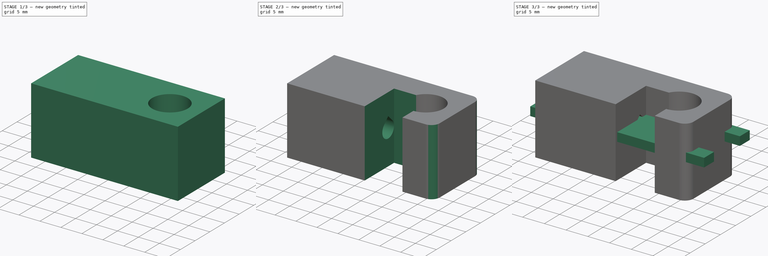
[diagram: build sequence overview — one tinted view per stage of 3, left to right]
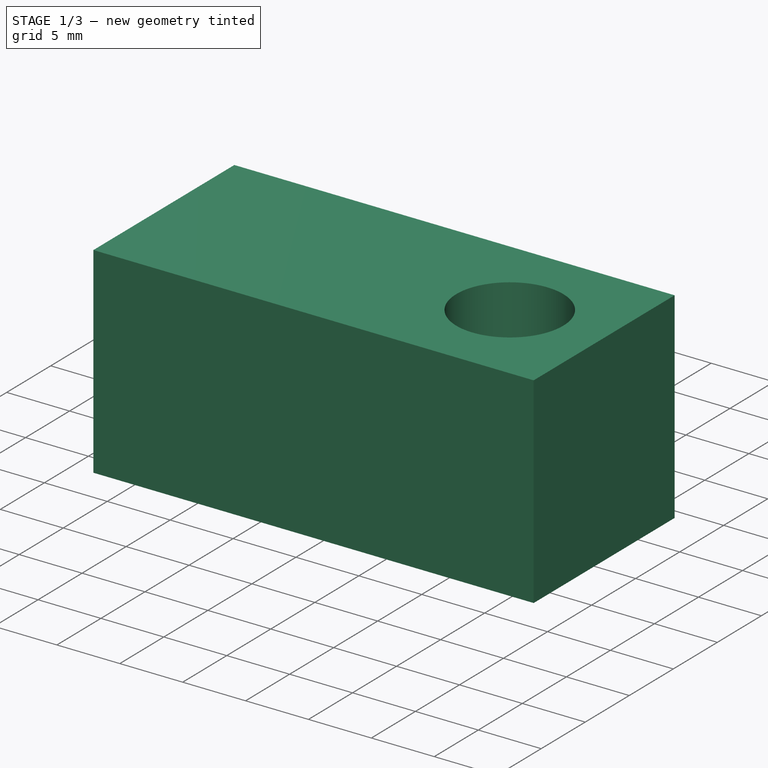
[diagram: stage 1 of 3 — iso view after this stage's code; geometry added in this stage tinted green]
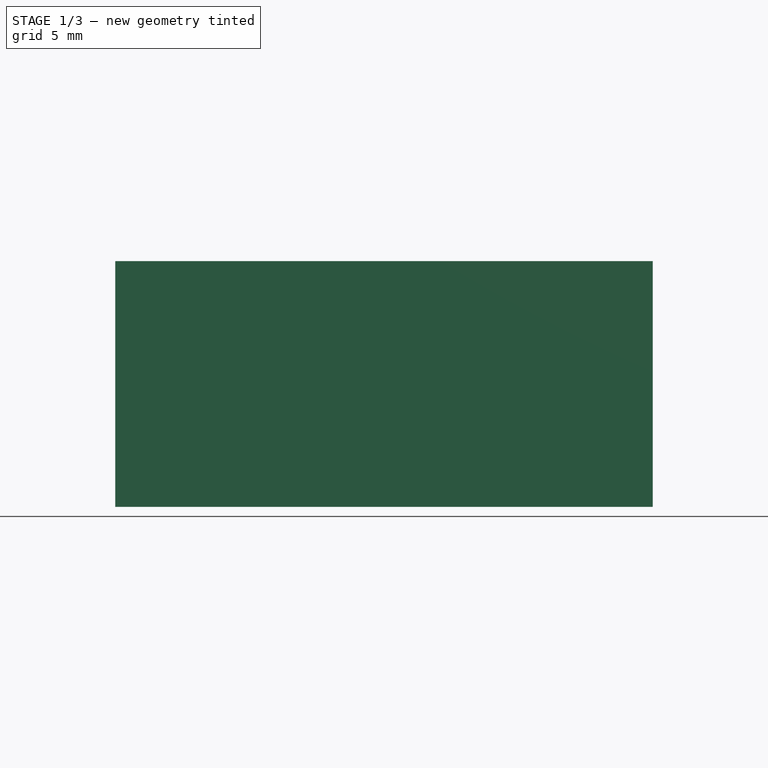
[diagram: stage 1 of 3 — front view after this stage's code; geometry added in this stage tinted green]
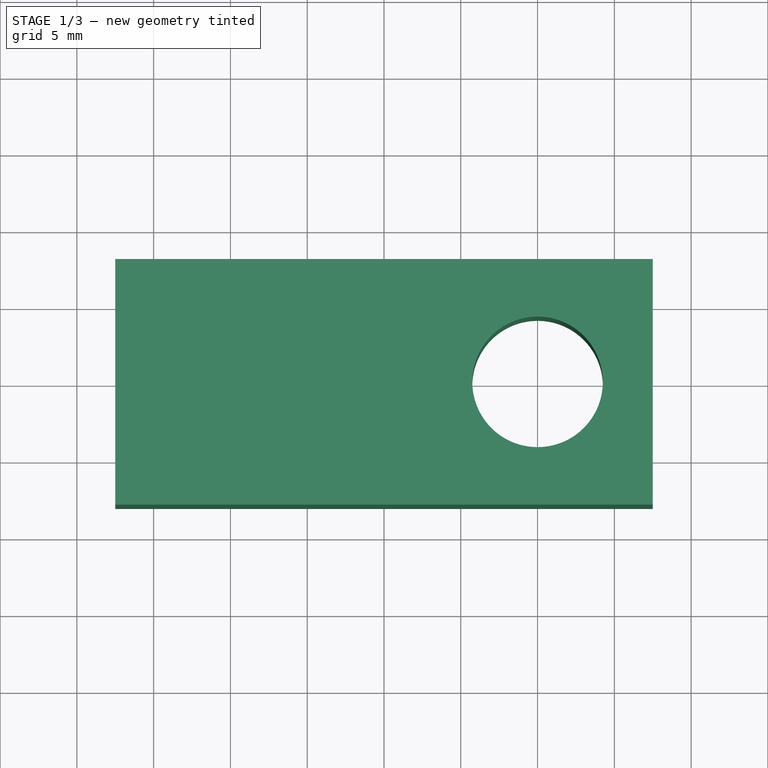
[diagram: stage 1 of 3 — top view after this stage's code; geometry added in this stage tinted green]
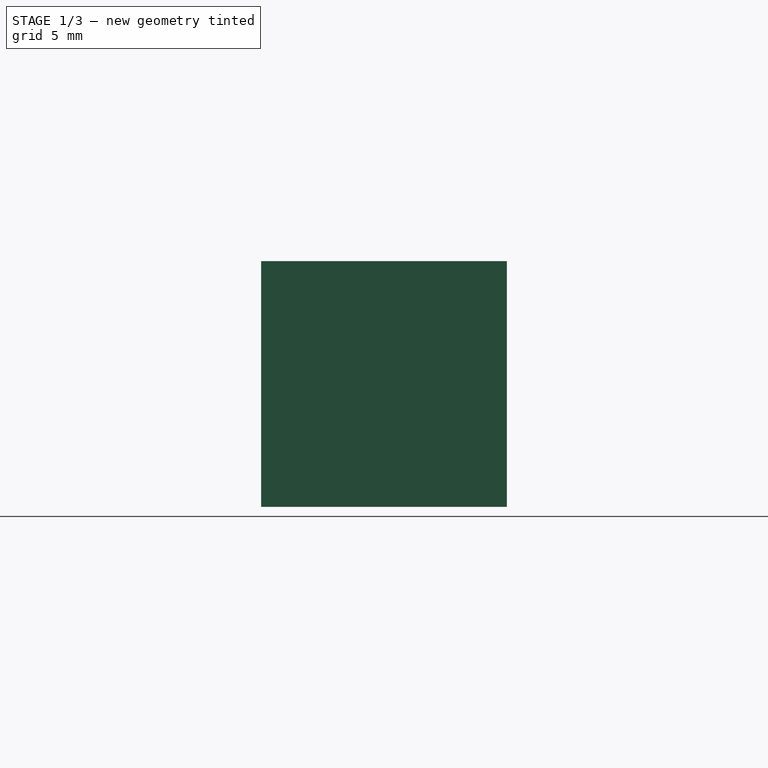
[diagram: stage 1 of 3 — right view after this stage's code; geometry added in this stage tinted green]
FCSTD DOCUMENT  (FreeCAD 0.21R33771 (Git))
Label: Nähmaschine
License: All rights reserved
LicenseURL: http://en.wikipedia.org/wiki/All_rights_reserved
objects: Sketcher::SketchObject×6, PartDesign::Pocket×4, PartDesign::Pad×2, PartDesign::Body×2, PartDesign::Fillet×1
note: 22 computed .brp shape members not serialized (recipe doc carries the construction recipe); baked Part::Feature solids carry a one-line shape summary decoded from their .brp

FEATURE [PartDesign::Body] Body  label="Plättchen"
  Group = -> [Sketch,Pad,Sketch001,Pocket]
  Origin = -> Origin
  Tip = -> Pocket
FEATURE [Sketcher::SketchObject] Sketch002
  FullyConstrained = true
  MapMode = 5
  Support = -> [XY_Plane001]
  sketch-geometry (4):
    g0: LineSegment StartX=-27.5 StartY=8 StartZ=0 EndX=7.5 EndY=8 EndZ=0
    g1: LineSegment StartX=7.5 StartY=8 StartZ=0 EndX=7.5 EndY=-8 EndZ=0
    g2: LineSegment StartX=7.5 StartY=-8 StartZ=0 EndX=-27.5 EndY=-8 EndZ=0
    g3: LineSegment StartX=-27.5 StartY=-8 StartZ=0 EndX=-27.5 EndY=8 EndZ=0
  constraints (11):
    c: Coincident(g0,g1)
    c: Coincident(g1,g2)
    c: Coincident(g2,g3)
    c: Coincident(g3,g0)
    c: Horizontal(g0)
    c: Horizontal(g2)
    c: Vertical(g3)
    c: Symmetric(g0,g1,g-1)
    c: Distance(g1) = 16
    c: Distance(g2) = 35
    c: Distance(g-1,g1) = 7.5
FEATURE [PartDesign::Pad] Pad001
  Direction = (0,0,1)
  Length = 16
  Length2 = 10
  Midplane = true
  Profile = -> Sketch002
  ReferenceAxis = -> Sketch002 [N_Axis]
  Type = 0
FEATURE [Sketcher::SketchObject] Sketch003
  FullyConstrained = true
  MapMode = 5
  Support = -> [XY_Plane001]
  sketch-geometry (1):
    g0: Circle CenterX=0 CenterY=0 CenterZ=0 NormalX=0 NormalY=0 NormalZ=1 AngleXU=0 Radius=4.25
  constraints (2):
    c: Coincident(g0,g-1)
    c: Diameter(g0) = 8.5
FEATURE [PartDesign::Pocket] Pocket001
  BaseFeature = -> Pad001
  Direction = (0,0,-1)
  Length = 5
  Length2 = 5
  Midplane = true
  Profile = -> Sketch003
  ReferenceAxis = -> Sketch003 [N_Axis]
  Type = 1
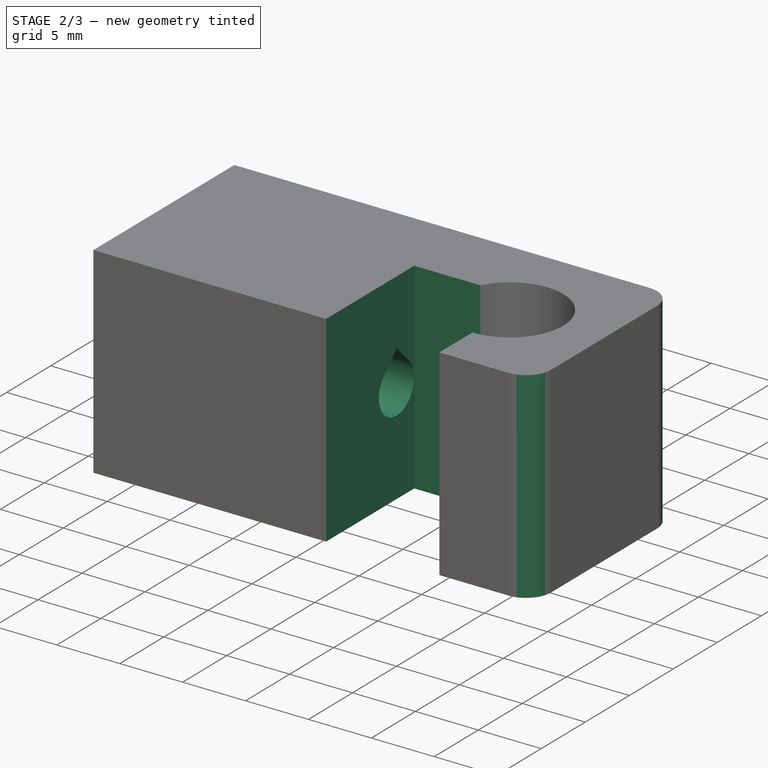
[diagram: stage 2 of 3 — iso view after this stage's code; geometry added in this stage tinted green]
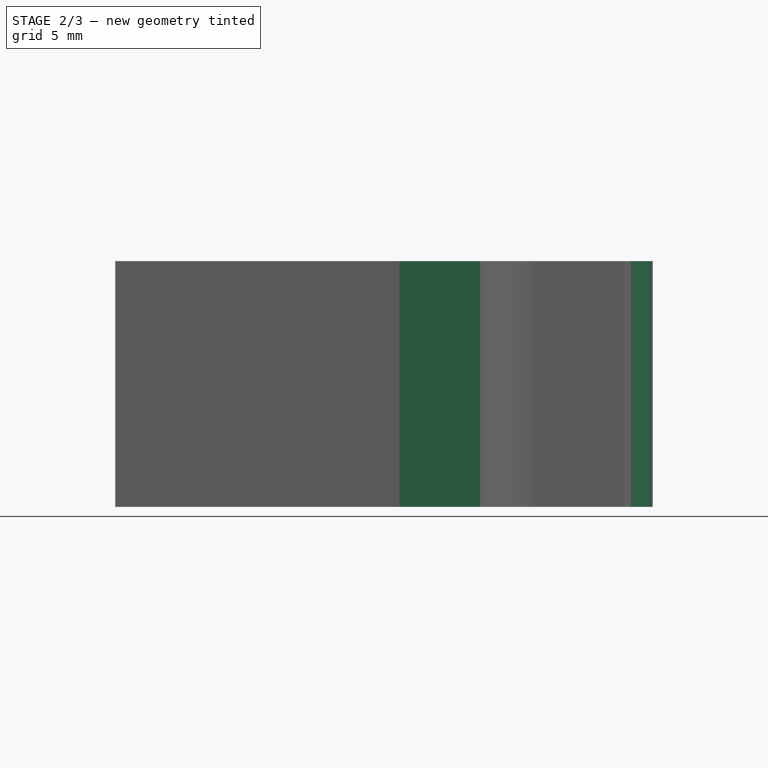
[diagram: stage 2 of 3 — front view after this stage's code; geometry added in this stage tinted green]
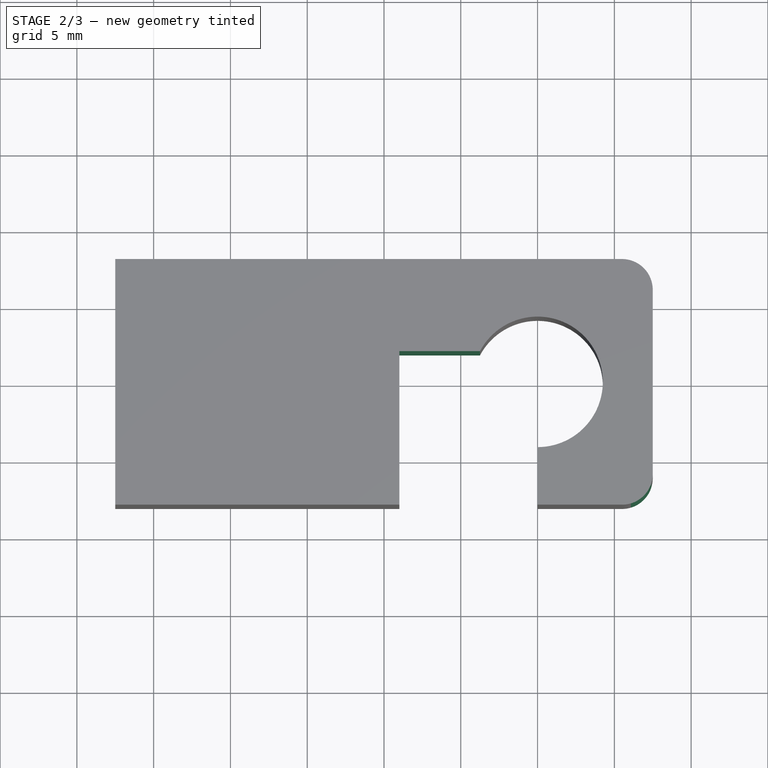
[diagram: stage 2 of 3 — top view after this stage's code; geometry added in this stage tinted green]
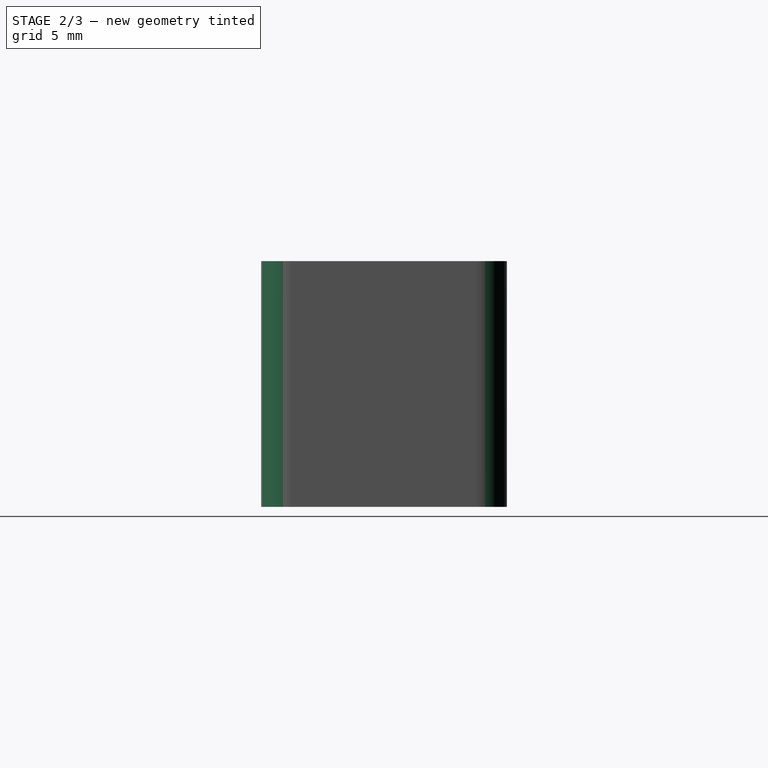
[diagram: stage 2 of 3 — right view after this stage's code; geometry added in this stage tinted green]
FEATURE [Sketcher::SketchObject] Sketch004
  ExternalGeometry = -> [Pocket001]
  FullyConstrained = true
  MapMode = 5
  Support = -> [XY_Plane001]
  sketch-geometry (4):
    g0: LineSegment StartX=-9 StartY=2 StartZ=0 EndX=0 EndY=2 EndZ=0
    g1: LineSegment StartX=0 StartY=2 StartZ=0 EndX=0 EndY=-8 EndZ=0
    g2: LineSegment StartX=0 StartY=-8 StartZ=0 EndX=-9 EndY=-8 EndZ=0
    g3: LineSegment StartX=-9 StartY=-8 StartZ=0 EndX=-9 EndY=2 EndZ=0
  constraints (12):
    c: Coincident(g0,g1)
    c: Coincident(g1,g2)
    c: Coincident(g2,g3)
    c: Coincident(g3,g0)
    c: Horizontal(g0)
    c: Horizontal(g2)
    c: Vertical(g1)
    c: Vertical(g3)
    c: PointOnObject(g-1,g1)
    c: PointOnObject(g-3,g2)
    c: DistanceY(g0,g-3) = 6
    c: DistanceX(g2,g2) = 9
FEATURE [PartDesign::Pocket] Pocket002
  BaseFeature = -> Pocket001
  Direction = (0,0,-1)
  Length = 5
  Length2 = 5
  Midplane = true
  Profile = -> Sketch004
  ReferenceAxis = -> Sketch004 [N_Axis]
  Type = 1
FEATURE [PartDesign::Fillet] Fillet
  Base = -> Pocket002 [Edge8,Edge2]
  BaseFeature = -> Pocket002
  Radius = 2
  SupportTransform = false
  UseAllEdges = false
FEATURE [Sketcher::SketchObject] Sketch005
  FullyConstrained = true
  MapMode = 5
  Placement = pos=(0,0,0) rot=(0.57735,0.57735,0.57735;2.0944rad)
  Support = -> [YZ_Plane001]
  sketch-geometry (3):
    g0: LineSegment StartX=1e-16 StartY=2.82843 StartZ=0 EndX=-1.41421 EndY=1.41421 EndZ=0
    g1: ArcOfCircle CenterX=0 CenterY=0 CenterZ=0 NormalX=0 NormalY=0 NormalZ=1 AngleXU=0 Radius=2 StartAngle=2.35619 EndAngle=7.06858
    g2: LineSegment StartX=1.41421 StartY=1.41421 StartZ=0 EndX=0 EndY=2.82843 EndZ=0
  constraints (7):
    c: Tangent(g0,g1) = -1.5708
    c: Tangent(g1,g2) = -1.5708
    c: Coincident(g0,g2)
    c: Horizontal(g1,g1)
    c: Perpendicular(g2,g0)
    c: Diameter(g1) = 4
    c: Coincident(g-1,g1)
FEATURE [PartDesign::Pocket] Pocket003
  BaseFeature = -> Fillet
  Direction = (-1,2e-16,-3e-16)
  Length = 5
  Length2 = 5
  Profile = -> Sketch005
  ReferenceAxis = -> Sketch005 [N_Axis]
  Type = 1
FEATURE [PartDesign::Body] Body001  label="Zwinge"
  Group = -> [Sketch002,Pad001,Sketch003,Pocket001,Sketch004,Pocket002,Fillet,Sketch005,Pocket003]
  Origin = -> Origin001
  Tip = -> Pocket003
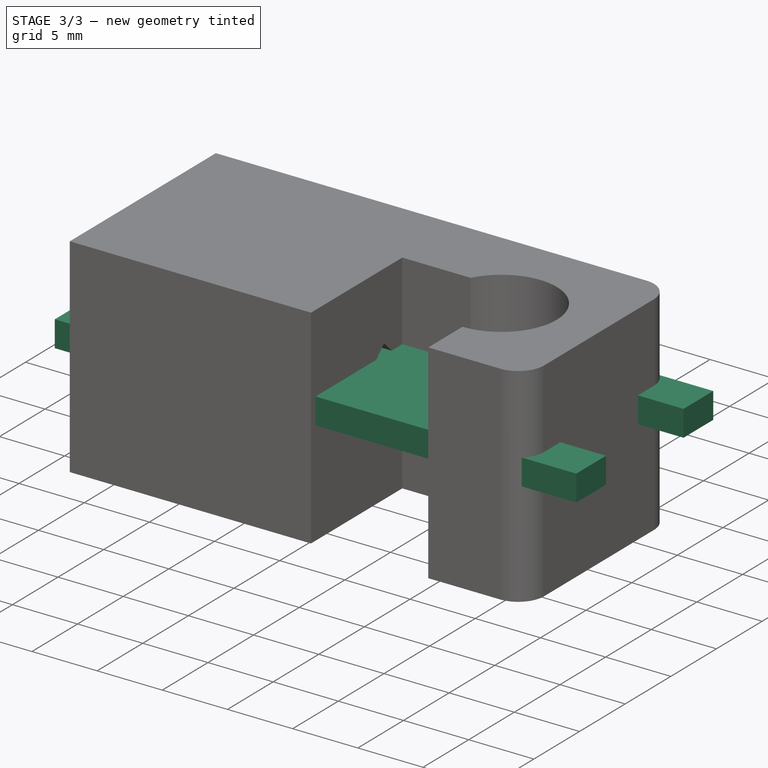
[diagram: stage 3 of 3 — iso view after this stage's code; geometry added in this stage tinted green]
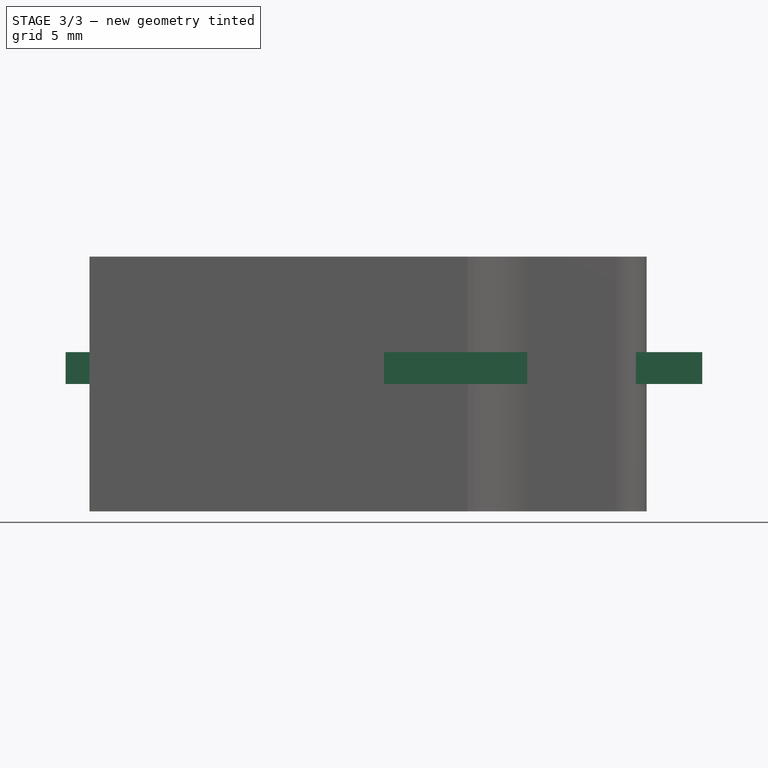
[diagram: stage 3 of 3 — front view after this stage's code; geometry added in this stage tinted green]
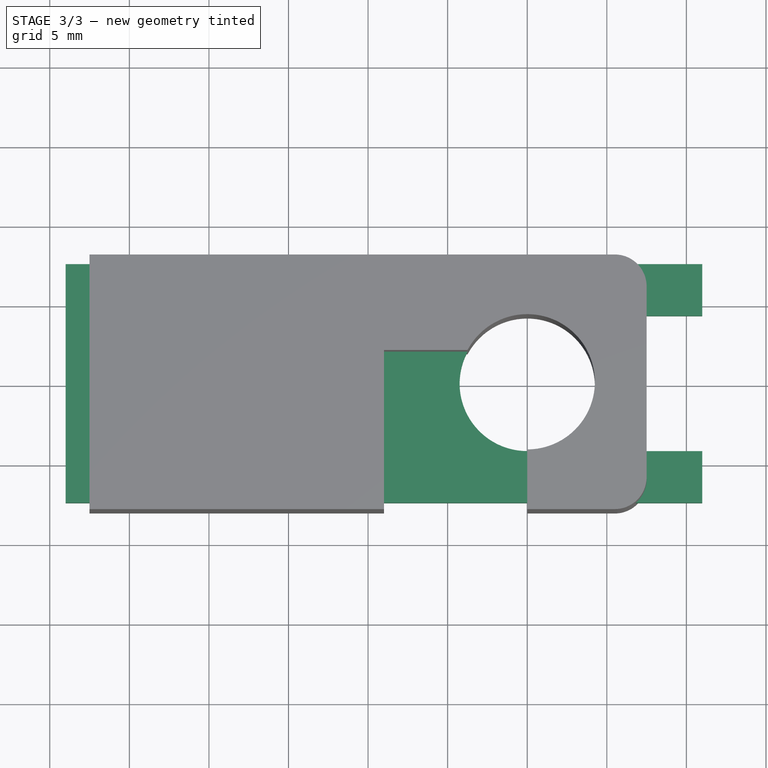
[diagram: stage 3 of 3 — top view after this stage's code; geometry added in this stage tinted green]
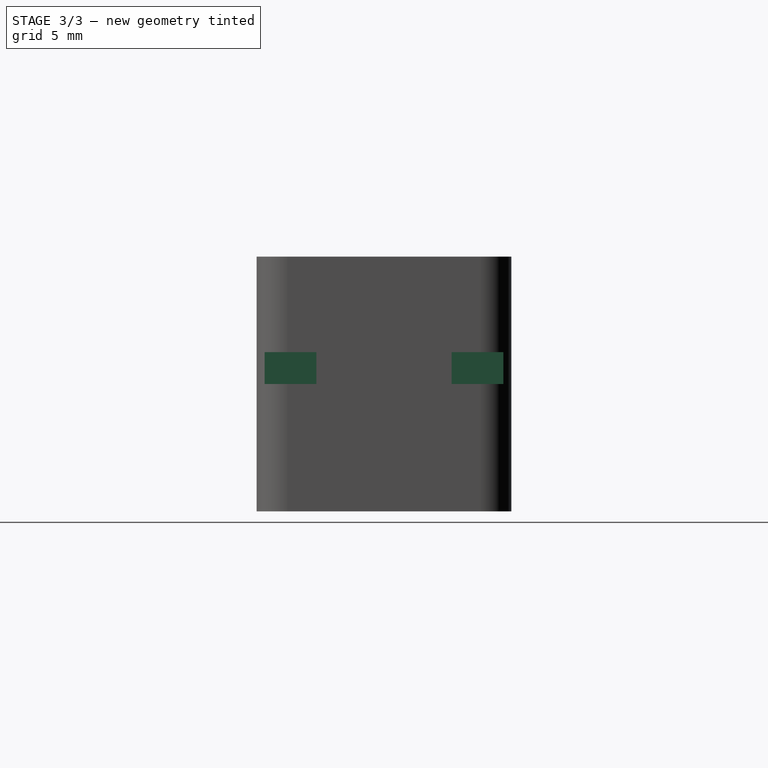
[diagram: stage 3 of 3 — right view after this stage's code; geometry added in this stage tinted green]
FEATURE [Sketcher::SketchObject] Sketch
  FullyConstrained = true
  MapMode = 5
  Support = -> [XY_Plane]
  sketch-geometry (8):
    g0: LineSegment StartX=-29 StartY=7.5 StartZ=0 EndX=11 EndY=7.5 EndZ=0
    g1: LineSegment StartX=11 StartY=7.5 StartZ=0 EndX=11 EndY=-7.5 EndZ=0
    g2: LineSegment StartX=11 StartY=-7.5 StartZ=0 EndX=-29 EndY=-7.5 EndZ=0
    g3: LineSegment StartX=-29 StartY=-7.5 StartZ=0 EndX=-29 EndY=7.5 EndZ=0
    g4: ArcOfCircle CenterX=0 CenterY=0 CenterZ=0 NormalX=0 NormalY=0 NormalZ=1 AngleXU=0 Radius=4.25 StartAngle=1.5708 EndAngle=4.71239
    g5: ArcOfCircle CenterX=11 CenterY=0 CenterZ=0 NormalX=0 NormalY=0 NormalZ=1 AngleXU=0 Radius=4.25 StartAngle=4.71239 EndAngle=7.85398
    g6: LineSegment StartX=-8e-16 StartY=-4.25 StartZ=0 EndX=11 EndY=-4.25 EndZ=0
    g7: LineSegment StartX=11 StartY=4.25 StartZ=0 EndX=0 EndY=4.25 EndZ=0
  constraints (20):
    c: Coincident(g0,g1)
    c: Coincident(g1,g2)
    c: Coincident(g2,g3)
    c: Coincident(g3,g0)
    c: Horizontal(g0)
    c: Horizontal(g2)
    c: Vertical(g1)
    c: Tangent(g4,g6) = -1.5708
    c: Tangent(g6,g5) = -1.5708
    c: Tangent(g5,g7) = -1.5708
    c: Tangent(g7,g4) = -1.5708
    c: Equal(g4,g5)
    c: Coincident(g4,g-1)
    c: PointOnObject(g5,g-1)
    c: DistanceY(g3,g3) = 15
    c: Diameter(g5) = 8.5
    c: Symmetric(g1,g1,g5)
    c: Distance(g6) = 11
    c: Distance(g2) = 40
    c: Vertical(g3)
FEATURE [PartDesign::Pad] Pad
  Direction = (0,0,1)
  Length = 2
  Length2 = 10
  Profile = -> Sketch
  ReferenceAxis = -> Sketch [N_Axis]
  Type = 0
FEATURE [Sketcher::SketchObject] Sketch001
  ExternalGeometry = -> [Pad]
  FullyConstrained = true
  MapMode = 5
  Support = -> [XY_Plane]
  sketch-geometry (4):
    g0: ArcOfCircle CenterX=0 CenterY=0 CenterZ=0 NormalX=0 NormalY=0 NormalZ=1 AngleXU=0 Radius=4.25 StartAngle=1.5708 EndAngle=4.71239
    g1: ArcOfCircle CenterX=11 CenterY=2e-16 CenterZ=0 NormalX=0 NormalY=0 NormalZ=1 AngleXU=0 Radius=4.25 StartAngle=4.71239 EndAngle=7.85398
    g2: LineSegment StartX=0 StartY=-4.25 StartZ=0 EndX=11 EndY=-4.25 EndZ=0
    g3: LineSegment StartX=11 StartY=4.25 StartZ=0 EndX=0 EndY=4.25 EndZ=0
  constraints (9):
    c: Tangent(g0,g2) = -1.5708
    c: Tangent(g2,g1) = -1.5708
    c: Tangent(g1,g3) = -1.5708
    c: Tangent(g3,g0) = -1.5708
    c: Equal(g0,g1)
    c: Coincident(g0,g-1)
    c: Horizontal(g3)
    c: PointOnObject(g1,g-3)
    c: Diameter(g1) = 8.5
FEATURE [PartDesign::Pocket] Pocket
  BaseFeature = -> Pad
  Direction = (0,0,-1)
  Length = 5
  Length2 = 5
  Midplane = true
  Profile = -> Sketch001
  ReferenceAxis = -> Sketch001 [N_Axis]
  Type = 1
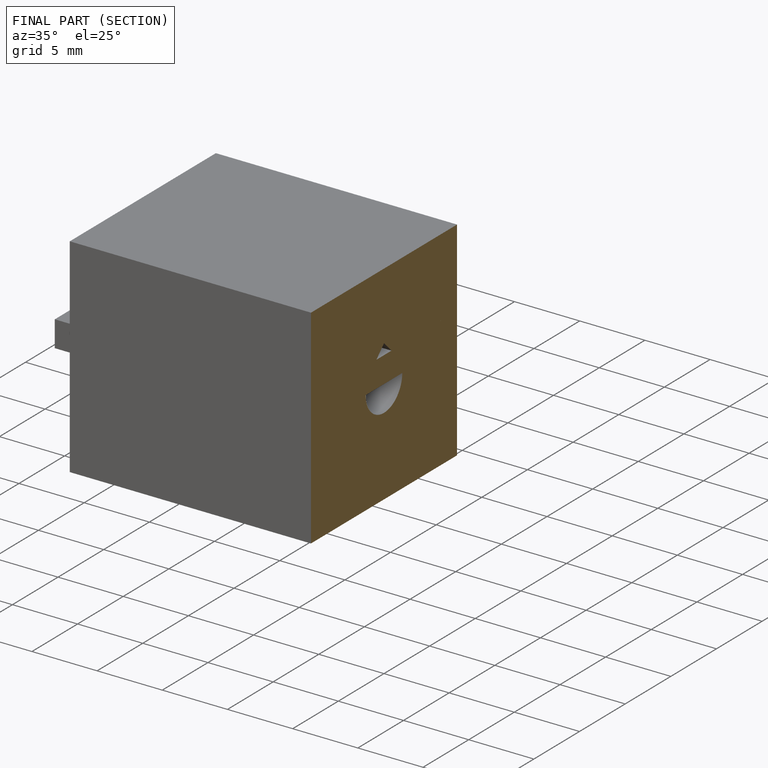
[diagram: finished part — half-section view (interior)]
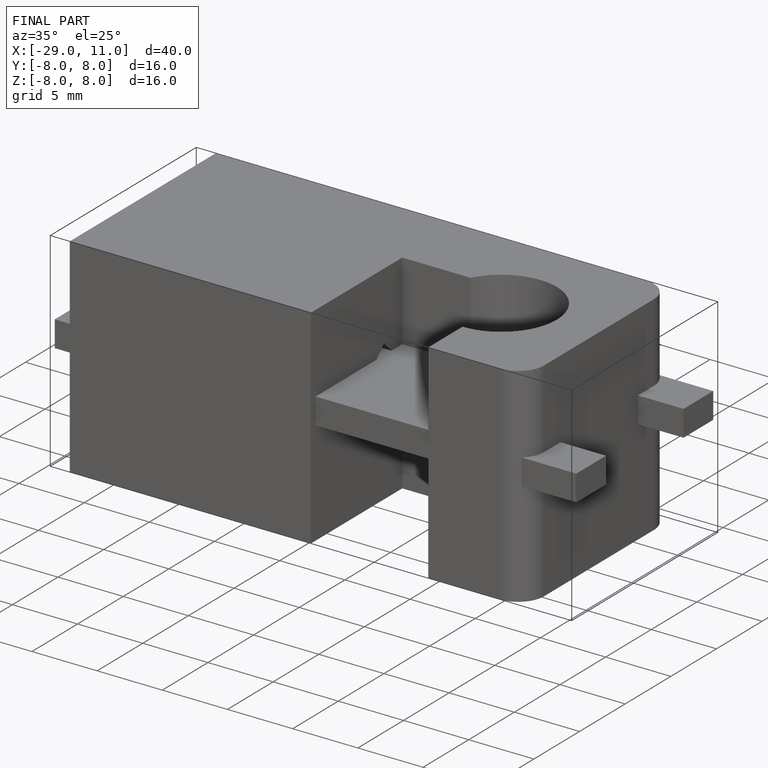
[diagram: finished part — iso view with bounding-box wireframe]
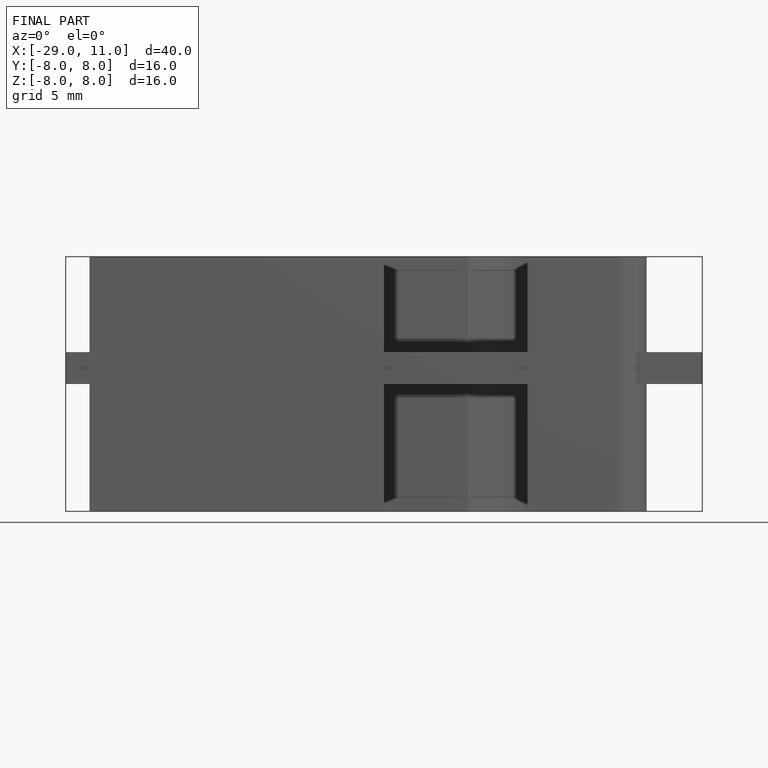
[diagram: finished part — front view with bounding-box wireframe]
